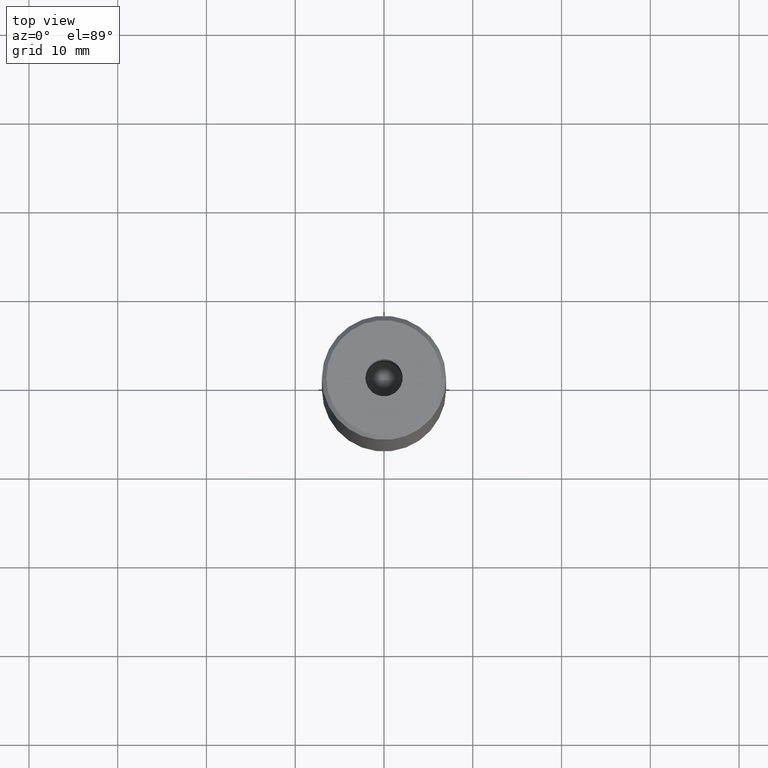
[diagram: clean part render]
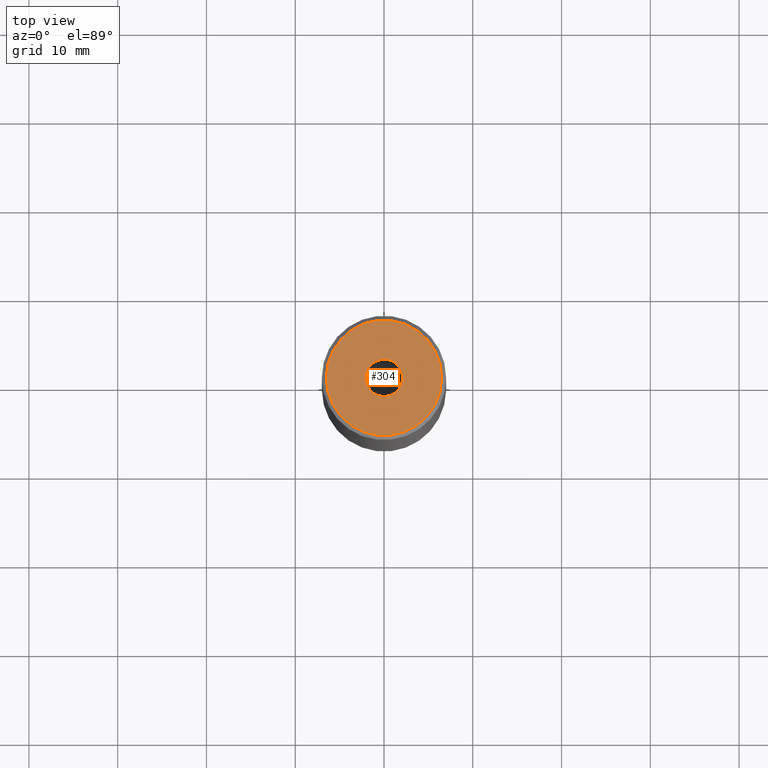
[diagram: same view with one face highlighted and labeled with its STEP entity id]
A machine part, top view. The second image highlights one B-rep face of the part: STEP entity #304.
In plain terms, the highlighted planar face has unit normal (0, -0, 1).
Its self-contained STEP definition (entity closure, byte-faithful):
#4 = DIRECTION ( 'NONE',  ( -0.000000000000000000, -0.000000000000000000, 1.000000000000000000 ) ) ;
#8 = DIRECTION ( 'NONE',  ( 0.000000000000000000, -0.000000000000000000, 1.000000000000000000 ) ) ;
#25 = CIRCLE ( 'NONE', #440, 2.099999999999998757 ) ;
#109 = DIRECTION ( 'NONE',  ( 1.000000000000000000, 0.000000000000000000, 0.000000000000000000 ) ) ;
#113 = ORIENTED_EDGE ( 'NONE', *, *, #562, .F. ) ;
#130 = VERTEX_POINT ( 'NONE', #214 ) ;
#140 = CARTESIAN_POINT ( 'NONE',  ( 0.000000000000000000, 0.000000000000000000, -1.990051048614449116E-16 ) ) ;
#177 = DIRECTION ( 'NONE',  ( 1.000000000000000000, 0.000000000000000000, 0.000000000000000000 ) ) ;
#186 = DIRECTION ( 'NONE',  ( 1.000000000000000000, 0.000000000000000000, 0.000000000000000000 ) ) ;
#190 = DIRECTION ( 'NONE',  ( 1.000000000000000000, 0.000000000000000000, 0.000000000000000000 ) ) ;
#191 = VERTEX_POINT ( 'NONE', #357 ) ;
#195 = AXIS2_PLACEMENT_3D ( 'NONE', #140, #317, #177 ) ;
#202 = ORIENTED_EDGE ( 'NONE', *, *, #521, .T. ) ;
#203 = CARTESIAN_POINT ( 'NONE',  ( -2.099999999999998757, 2.571758278209439985E-16, -1.990051048614449116E-16 ) ) ;
#214 = CARTESIAN_POINT ( 'NONE',  ( 2.099999999999998757, 0.000000000000000000, -1.990051048614449116E-16 ) ) ;
#239 = CIRCLE ( 'NONE', #576, 6.499999999999977796 ) ;
#243 = EDGE_LOOP ( 'NONE', ( #202, #324 ) ) ;
#265 = FACE_OUTER_BOUND ( 'NONE', #243, .T. ) ;
#304 = ADVANCED_FACE ( 'NONE', ( #452, #265 ), #402, .T. ) ;
#314 = DIRECTION ( 'NONE',  ( -0.000000000000000000, -0.000000000000000000, 1.000000000000000000 ) ) ;
#317 = DIRECTION ( 'NONE',  ( -0.000000000000000000, -0.000000000000000000, 1.000000000000000000 ) ) ;
#318 = CARTESIAN_POINT ( 'NONE',  ( 0.000000000000000000, 0.000000000000000000, 0.000000000000000000 ) ) ;
#324 = ORIENTED_EDGE ( 'NONE', *, *, #428, .T. ) ;
#351 = CIRCLE ( 'NONE', #195, 2.099999999999998757 ) ;
#357 = CARTESIAN_POINT ( 'NONE',  ( -6.499999999999977796, 0.000000000000000000, 0.000000000000000000 ) ) ;
#364 = CARTESIAN_POINT ( 'NONE',  ( 6.499999999999977796, 8.266365894244620528E-16, 0.000000000000000000 ) ) ;
#371 = CARTESIAN_POINT ( 'NONE',  ( 0.000000000000000000, 0.000000000000000000, 0.000000000000000000 ) ) ;
#381 = VERTEX_POINT ( 'NONE', #203 ) ;
#402 = PLANE ( 'NONE',  #420 ) ;
#420 = AXIS2_PLACEMENT_3D ( 'NONE', #318, #8, #190 ) ;
#428 = EDGE_CURVE ( 'NONE', #525, #191, #448, .T. ) ;
#440 = AXIS2_PLACEMENT_3D ( 'NONE', #509, #314, #557 ) ;
#448 = CIRCLE ( 'NONE', #459, 6.499999999999977796 ) ;
#452 = FACE_BOUND ( 'NONE', #571, .T. ) ;
#459 = AXIS2_PLACEMENT_3D ( 'NONE', #513, #473, #109 ) ;
#473 = DIRECTION ( 'NONE',  ( -0.000000000000000000, -0.000000000000000000, 1.000000000000000000 ) ) ;
#509 = CARTESIAN_POINT ( 'NONE',  ( 0.000000000000000000, 0.000000000000000000, -1.990051048614449116E-16 ) ) ;
#513 = CARTESIAN_POINT ( 'NONE',  ( 0.000000000000000000, 0.000000000000000000, 0.000000000000000000 ) ) ;
#521 = EDGE_CURVE ( 'NONE', #191, #525, #239, .T. ) ;
#525 = VERTEX_POINT ( 'NONE', #364 ) ;
#539 = EDGE_CURVE ( 'NONE', #381, #130, #25, .T. ) ;
#557 = DIRECTION ( 'NONE',  ( 1.000000000000000000, 0.000000000000000000, 0.000000000000000000 ) ) ;
#562 = EDGE_CURVE ( 'NONE', #130, #381, #351, .T. ) ;
#566 = ORIENTED_EDGE ( 'NONE', *, *, #539, .F. ) ;
#571 = EDGE_LOOP ( 'NONE', ( #113, #566 ) ) ;
#576 = AXIS2_PLACEMENT_3D ( 'NONE', #371, #4, #186 ) ;